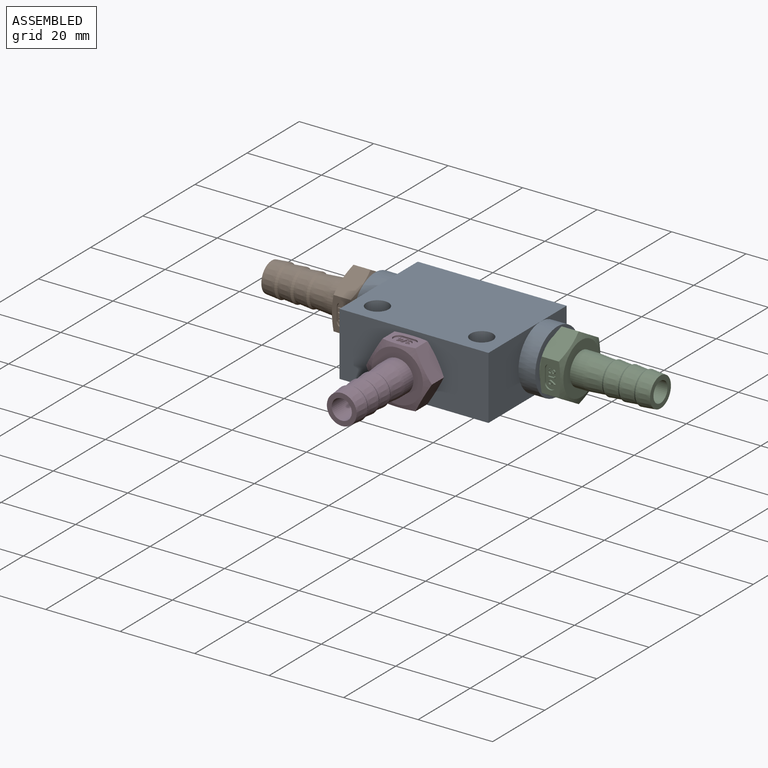
[diagram: assembled view]
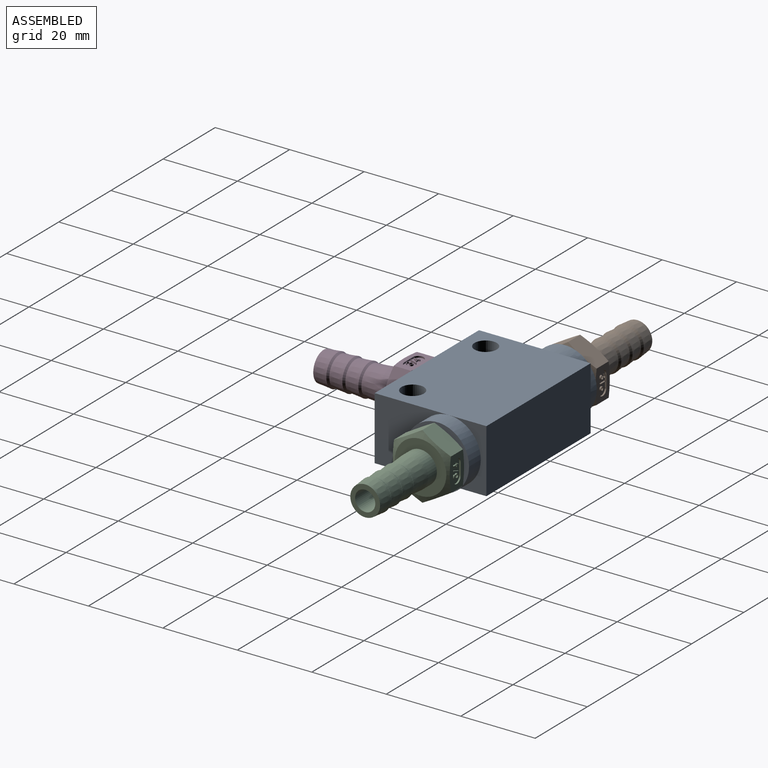
[diagram: assembled view, second angle]
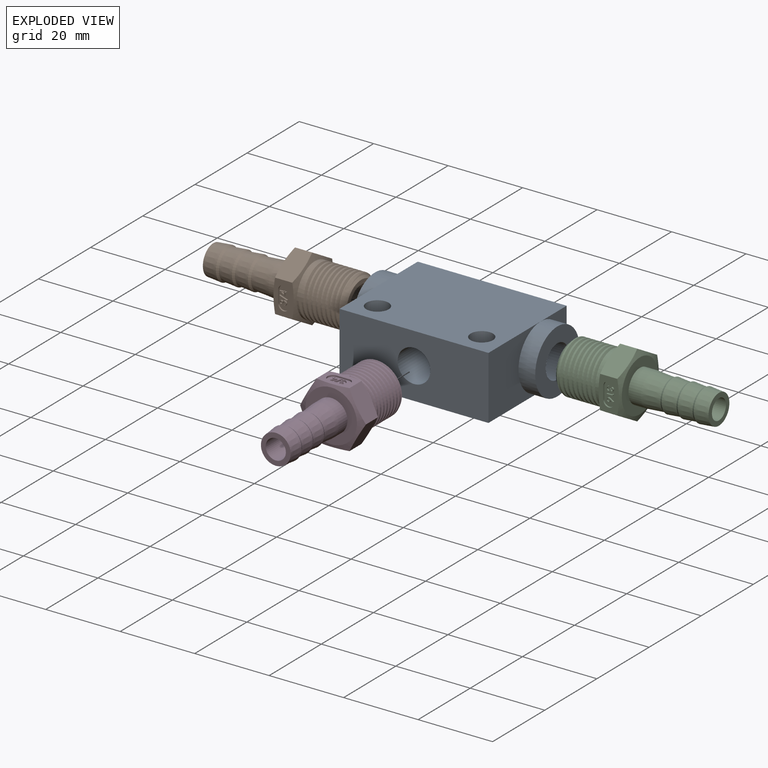
[diagram: exploded view]
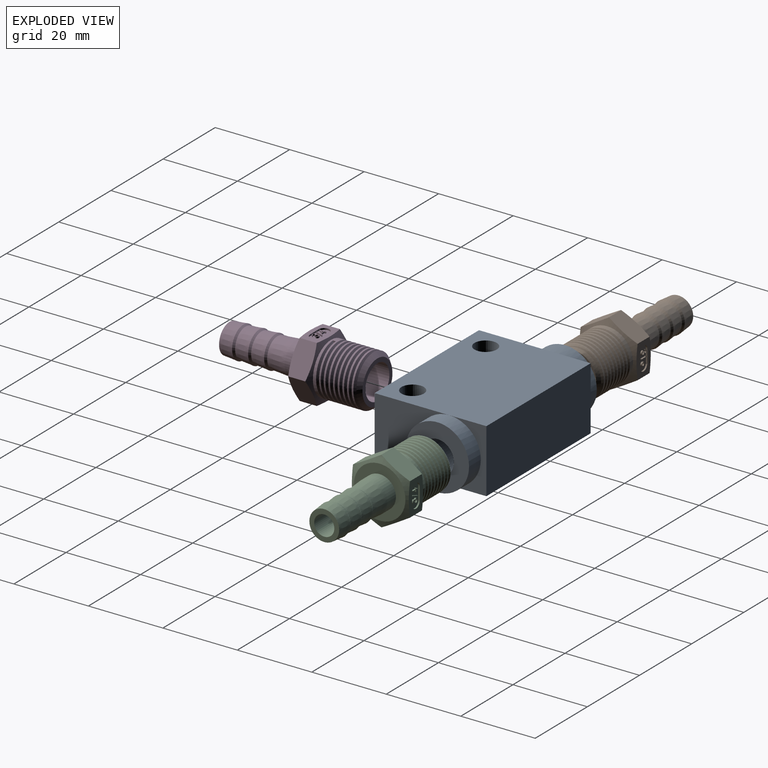
[diagram: exploded view, second angle]
ASSEMBLY  parts=4 mates=3
PART A: 20 faces, bbox 49x30x17 mm
  f0: plane 17x10mm, normal (-1,0,0), area 56.5mm2, adj f5,f6,f7,f15
  f1: plane 20x17mm, normal (-1,0,0), area 226.5mm2, adj f2,f6,f7,f15
  f2: plane 40x17mm, normal (0,-1,0), area 619.2mm2, adj f1,f3,f6,f7,f10
  f3: plane 20x17mm, normal (1,0,0), area 226.5mm2, adj f2,f6,f7,f17
  f4: plane 17x10mm, normal (1,0,0), area 56.5mm2, adj f5,f6,f7,f17
  f5: plane 40x17mm, normal (0,1,0), area 680mm2, adj f0,f4,f6,f7
  f6: plane 40x30mm, normal (0,0,-1), area 1143.5mm2, adj f0,f1,f2,f3,f4,f5,f8,f9
  f7: plane 40x30mm, normal (0,0,1), area 1143.5mm2, adj f0,f1,f2,f3,f4,f5,f8,f9
  f8: cylinder r=3mm len=17mm, axis (0,0,1), area 320.4mm2, adj f6,f7
  f9: cylinder r=3mm len=17mm, axis (0,0,1), area 320.4mm2, adj f6,f7
  f10: cylinder r=4.4mm len=20mm, axis (0,-1,0), area 483.8mm2, adj f2,f19
  f11: cylinder r=4.4mm len=6mm, axis (0,-1,0), area 9.9mm2, adj f13,f19
  f12: cylinder r=4.4mm len=6mm, axis (0,-1,0), area 9.9mm2, adj f14,f19
  f13: plane 6x1.18mm, normal (0,-1,0), area 4.9mm2, adj f11,f19
  f14: plane 6x1.18mm, normal (0,-1,0), area 4.9mm2, adj f12,f19
  f15: cylinder r=8.5mm len=17mm, axis (-1,0,0), area 240.3mm2, adj f0,f1,f16
  f16: plane 17x17mm, normal (-1,0,0), area 166.2mm2, adj f15,f19
  f17: cylinder r=8.5mm len=17mm, axis (1,0,0), area 240.3mm2, adj f3,f4,f18
  f18: plane 17x17mm, normal (1,0,0), area 166.2mm2, adj f17,f19
  f19: cylinder r=4.4mm len=49mm, axis (1,0,0), area 1265.8mm2, adj f10,f11,f12,f13,f14,f16,f18
PART B: 122 faces, bbox 18.3x40.4x18.3 mm
  f0: plane 6.25x2.92mm, normal (0,0,-1), area 14.5mm2, adj f80,f81,f82,f83,f84,f85,f86,f87
  f1: plane 6.25x2.92mm, normal (0,0,1), area 14.3mm2, adj f37,f38,f39,f40,f41,f42,f43,f44
  f2: plane 13.83x13.83mm, normal (0,1,0), area 90.2mm2, adj f24,f36
  f3: plane 11.5x11.5mm, normal (0,-1,0), area 37.9mm2, adj f13,f34
  f4: cylinder r=6.92mm len=0.4mm, axis (0,-1,0), area 0mm2, adj f5,f26,f34
  f5: cylinder r=6.92mm len=13.83mm, axis (0,-1,0), area 17mm2, adj f4,f6,f26,f27,f34
  f6: cylinder r=6.92mm len=13.83mm, axis (0,-1,0), area 20.9mm2, adj f5,f7,f26,f27
  f7: cylinder r=6.92mm len=13.83mm, axis (0,-1,0), area 20.9mm2, adj f6,f8,f26,f27
  f8: cylinder r=6.92mm len=13.83mm, axis (0,-1,0), area 20.9mm2, adj f7,f9,f26,f27
  f9: cylinder r=6.92mm len=13.83mm, axis (0,-1,0), area 20.9mm2, adj f8,f10,f26,f27
  f10: cylinder r=6.92mm len=13.83mm, axis (0,-1,0), area 20.9mm2, adj f9,f11,f26,f27
  f11: cylinder r=6.92mm len=13.83mm, axis (0,-1,0), area 20.9mm2, adj f10,f12,f26,f27
  f12: cylinder r=6.92mm len=13.83mm, axis (0,-1,0), area 72.1mm2, adj f11,f25,f26,f27,f35
  f13: cylinder r=4.58mm len=15mm, axis (0,-1,0), area 432mm2, adj f3,f14
  f14: cone r=2.71mm half-angle=52.9deg, axis (0,-1,0), area 53.8mm2, adj f13,f15
  f15: cylinder r=2.71mm len=23.33mm, axis (0,-1,0), area 397.1mm2, adj f14,f16
  f16: plane 8x8mm, normal (0,1,0), area 27.2mm2, adj f15,f17
  f17: cone r=4.33mm half-angle=5.1deg, axis (0,-1,0), area 98.2mm2, adj f16,f18
  f18: cone r=4mm half-angle=30.3deg, axis (0,1,0), area 17.3mm2, adj f17,f19
  f19: cone r=4.33mm half-angle=5.1deg, axis (0,-1,0), area 98.2mm2, adj f18,f20
  f20: cone r=4mm half-angle=30.3deg, axis (0,1,0), area 17.3mm2, adj f19,f21
  f21: cone r=4.33mm half-angle=5.1deg, axis (0,-1,0), area 98.2mm2, adj f20,f22
  f22: cone r=4mm half-angle=30.3deg, axis (0,1,0), area 17.3mm2, adj f21,f23
  f23: cone r=4.38mm half-angle=4.3deg, axis (0,-1,0), area 131.9mm2, adj f22,f24
  f24: cylinder r=4.38mm len=8.75mm, axis (0,-1,0), area 91.6mm2, adj f2,f23
  f25: plane 0.77x0.67mm, normal (1,0,0), area 0.3mm2, adj f12,f26,f27
  f26: bspline ~13.83x13.83mm, area 268.2mm2, adj f4,f5,f6,f7,f8,f9,f10,f11
  f27: bspline ~13.83x13.83mm, area 278.5mm2, adj f5,f6,f7,f8,f9,f10,f11,f12
  f28: plane 7.65x5.47mm, normal (-0.87,0,-0.5), area 45.7mm2, adj f29,f33,f35,f36
  f29: plane 9.51x6.14mm, normal (0,0,-1), area 29.3mm2, adj f28,f30,f35,f36,f80,f81,f82,f83
  f30: plane 7.65x5.47mm, normal (0.87,0,-0.5), area 45.7mm2, adj f29,f31,f35,f36
  f31: plane 7.65x5.47mm, normal (0.87,0,0.5), area 45.7mm2, adj f30,f32,f35,f36
  f32: plane 8.84x5.47mm, normal (0,0,1), area 29.3mm2, adj f31,f33,f35,f36,f37,f38,f39,f40
  f33: plane 7.65x5.47mm, normal (-0.87,0,0.5), area 45.7mm2, adj f28,f32,f35,f36
  f34: cone r=6.92mm half-angle=45deg, axis (0,1,0), area 53.5mm2, adj f3,f4,f5,f26,f27
  f35: cone r=8.83mm half-angle=70deg, axis (0,1,0), area 55.8mm2, adj f12,f28,f29,f30,f31,f32,f33
  f36: cone r=6.92mm half-angle=70deg, axis (0,-1,0), area 57.7mm2, adj f2,f28,f29,f30,f31,f32,f33
  f37: cylinder r=1.46mm len=2.92mm, axis (0,0,1), area 1.9mm2, adj f1,f32,f38,f40
  f38: plane 3.33x0.42mm, normal (0,-1,0), area 1.4mm2, adj f1,f32,f37,f39
  f39: cylinder r=1.46mm len=2.92mm, axis (0,0,1), area 1.9mm2, adj f1,f32,f38,f40
  f40: plane 3.33x0.42mm, normal (0,1,0), area 1.4mm2, adj f1,f32,f37,f39
  f41: extruded ~0.53x0.45mm, area 0.3mm2, adj f1,f42,f57,f58
  f42: extruded ~0.52x0.46mm, area 0.3mm2, adj f1,f41,f43,f58
  f43: extruded ~0.42x0.36mm, area 0.2mm2, adj f1,f42,f44,f58
  f44: cylinder r=0.48mm len=0.42mm, axis (0,0,-1), area 0.1mm2, adj f1,f43,f45,f58
  f45: cylinder r=0.51mm len=0.42mm, axis (0,0,-1), area 0.1mm2, adj f1,f44,f46,f58
  f46: extruded ~0.61x0.57mm, area 0.4mm2, adj f1,f45,f47,f58
  f47: extruded ~0.59x0.52mm, area 0.4mm2, adj f1,f46,f48,f58
  f48: plane 0.42x0.16mm, normal (0,1,0), area 0.1mm2, adj f1,f47,f49,f58
  f49: extruded ~0.42x0.24mm, area 0.1mm2, adj f1,f48,f50,f58
  f50: extruded ~0.42x0.29mm, area 0.1mm2, adj f1,f49,f51,f58
  f51: extruded ~0.45x0.42mm, area 0.3mm2, adj f1,f50,f52,f58
  f52: extruded ~0.54x0.42mm, area 0.3mm2, adj f1,f51,f53,f58
  f53: plane 0.42x0.18mm, normal (-1,0,0), area 0.1mm2, adj f1,f52,f54,f58
  f54: extruded ~0.45x0.42mm, area 0.2mm2, adj f1,f53,f55,f58
  f55: extruded ~0.42x0.35mm, area 0.2mm2, adj f1,f54,f56,f58
  f56: extruded ~0.42x0.37mm, area 0.2mm2, adj f1,f55,f57,f58
  f57: plane 0.42x0.16mm, normal (0,-1,0), area 0.1mm2, adj f1,f41,f56,f58
  f58: plane 1.85x1.2mm, normal (0,0,1), area 0.7mm2, adj f41,f42,f43,f44,f45,f46,f47,f48
  f59: plane 1.76x0.42mm, normal (1,0,0), area 0.7mm2, adj f1,f60,f64,f65
  f60: plane 0.42x0.16mm, normal (0,-1,0), area 0.1mm2, adj f1,f59,f61,f65
  f61: plane 1.58x0.42mm, normal (-1,0,0), area 0.7mm2, adj f1,f60,f62,f65
  f62: plane 0.42x0.27mm, normal (0,-1,0), area 0.1mm2, adj f1,f61,f63,f65
  f63: plane 0.42x0.18mm, normal (-0.87,0.5,0), area 0.1mm2, adj f1,f62,f64,f65
  f64: plane 0.42x0.33mm, normal (0,1,0), area 0.1mm2, adj f1,f59,f63,f65
  f65: plane 1.76x0.43mm, normal (0,0,1), area 0.3mm2, adj f59,f60,f61,f62,f63,f64
  f66: plane 0.71x0.47mm, normal (0.84,-0.55,0), area 0.4mm2, adj f1,f67,f73,f74
  f67: cylinder r=1.11mm len=0.42mm, axis (0,0,-1), area 0.1mm2, adj f1,f66,f68,f74
  f68: extruded ~0.52x0.52mm, area 0.3mm2, adj f1,f67,f69,f74
  f69: extruded ~0.55x0.54mm, area 0.4mm2, adj f1,f68,f70,f74
  f70: extruded ~0.54x0.53mm, area 0.4mm2, adj f1,f69,f71,f74
  f71: extruded ~0.51x0.42mm, area 0.2mm2, adj f1,f70,f72,f74
  f72: plane 0.81x0.53mm, normal (-0.84,0.55,0), area 0.4mm2, adj f1,f71,f73,f74
  f73: plane 0.42x0.12mm, normal (0.62,0.79,0), area 0.1mm2, adj f1,f66,f72,f74
  f74: plane 1.85x1.09mm, normal (0,0,1), area 0.6mm2, adj f66,f67,f68,f69,f70,f71,f72,f73
  f75: extruded ~0.42x0.38mm, area 0.2mm2, adj f74,f76,f78,f79
  f76: extruded ~0.42x0.38mm, area 0.2mm2, adj f74,f75,f77,f79
  f77: extruded ~0.42x0.4mm, area 0.2mm2, adj f74,f76,f78,f79
  f78: extruded ~0.42x0.37mm, area 0.2mm2, adj f74,f75,f77,f79
  f79: plane 0.77x0.7mm, normal (0,0,1), area 0.4mm2, adj f75,f76,f77,f78
  f80: cylinder r=1.46mm len=2.92mm, axis (0,0,-1), area 1.9mm2, adj f0,f29,f81,f83
  f81: plane 3.33x0.42mm, normal (0,-1,0), area 1.4mm2, adj f0,f29,f80,f82
  f82: cylinder r=1.46mm len=2.92mm, axis (0,0,-1), area 1.9mm2, adj f0,f29,f81,f83
  f83: plane 3.33x0.42mm, normal (0,1,0), area 1.4mm2, adj f0,f29,f80,f82
  f84: plane 1.22x0.42mm, normal (-1,0,0), area 0.5mm2, adj f0,f85,f93,f94
  f85: plane 0.42x0.2mm, normal (0,1,0), area 0.1mm2, adj f0,f84,f86,f94
  f86: plane 0.42x0.18mm, normal (-1,0,0), area 0.1mm2, adj f0,f85,f87,f94
  f87: plane 0.42x0.2mm, normal (0,-1,0), area 0.1mm2, adj f0,f86,f88,f94
  f88: plane 0.42x0.41mm, normal (-1,0,0), area 0.2mm2, adj f0,f87,f89,f94
  f89: plane 0.42x0.16mm, normal (0,-1,0), area 0.1mm2, adj f0,f88,f90,f94
  f90: plane 0.42x0.41mm, normal (1,0,0), area 0.2mm2, adj f0,f89,f91,f94
  f91: plane 0.84x0.42mm, normal (0,-1,0), area 0.3mm2, adj f0,f90,f92,f94
  f92: plane 1.4x0.96mm, normal (0.82,0.57,0), area 0.7mm2, adj f0,f91,f93,f94
  f93: plane 0.42x0.03mm, normal (0,1,0), area 0mm2, adj f0,f84,f92,f94
  f94: plane 1.81x1.2mm, normal (0,0,-1), area 0.6mm2, adj f84,f85,f86,f87,f88,f89,f90,f91
  f95: plane 0.77x0.53mm, normal (-0.82,-0.57,0), area 0.4mm2, adj f94,f96,f97,f98
  f96: plane 0.53x0.42mm, normal (0,1,0), area 0.2mm2, adj f94,f95,f97,f98
  f97: plane 0.77x0.42mm, normal (1,0,0), area 0.3mm2, adj f94,f95,f96,f98
  f98: plane 0.77x0.53mm, normal (0,0,-1), area 0.2mm2, adj f95,f96,f97
  f99: plane 0.42x0.17mm, normal (0,-1,0), area 0.1mm2, adj f0,f100,f102,f103
  f100: plane 2.06x0.74mm, normal (0.94,0.34,0), area 0.9mm2, adj f0,f99,f101,f103
  f101: plane 0.42x0.17mm, normal (0,1,0), area 0.1mm2, adj f0,f100,f102,f103
  f102: plane 2.06x0.74mm, normal (-0.94,-0.34,0), area 0.9mm2, adj f0,f99,f101,f103
  f103: plane 2.06x0.9mm, normal (0,0,-1), area 0.3mm2, adj f99,f100,f101,f102
  f104: extruded ~0.53x0.45mm, area 0.3mm2, adj f0,f105,f120,f121
  f105: extruded ~0.52x0.46mm, area 0.3mm2, adj f0,f104,f106,f121
  f106: extruded ~0.42x0.36mm, area 0.2mm2, adj f0,f105,f107,f121
  f107: cylinder r=0.48mm len=0.42mm, axis (0,0,1), area 0.1mm2, adj f0,f106,f108,f121
  f108: cylinder r=0.51mm len=0.42mm, axis (0,0,1), area 0.1mm2, adj f0,f107,f109,f121
  f109: extruded ~0.61x0.57mm, area 0.4mm2, adj f0,f108,f110,f121
  f110: extruded ~0.59x0.52mm, area 0.4mm2, adj f0,f109,f111,f121
  f111: plane 0.42x0.16mm, normal (0,1,0), area 0.1mm2, adj f0,f110,f112,f121
  f112: extruded ~0.42x0.24mm, area 0.1mm2, adj f0,f111,f113,f121
  f113: extruded ~0.42x0.29mm, area 0.1mm2, adj f0,f112,f114,f121
  f114: extruded ~0.45x0.42mm, area 0.3mm2, adj f0,f113,f115,f121
  f115: extruded ~0.54x0.42mm, area 0.3mm2, adj f0,f114,f116,f121
  f116: plane 0.42x0.18mm, normal (1,0,0), area 0.1mm2, adj f0,f115,f117,f121
  f117: extruded ~0.45x0.42mm, area 0.2mm2, adj f0,f116,f118,f121
  f118: extruded ~0.42x0.35mm, area 0.2mm2, adj f0,f117,f119,f121
  f119: extruded ~0.42x0.37mm, area 0.2mm2, adj f0,f118,f120,f121
  f120: plane 0.42x0.16mm, normal (0,-1,0), area 0.1mm2, adj f0,f104,f119,f121
  f121: plane 1.85x1.2mm, normal (0,0,-1), area 0.7mm2, adj f104,f105,f106,f107,f108,f109,f110,f111
PART C: same geometry as B
PART D: same geometry as B
PLACE A t=(5.37,-27.42,12.87)mm
PLACE B rot(axis=(-0.58,0.58,0.58),120deg) t=(-17.75,11.6,21.37)mm
PLACE C rot(axis=(0.58,0.58,-0.58),120deg) t=(-8.75,11.6,21.37)mm
PLACE D rot(axis=(1,0,0),180deg) t=(-13.25,11.6,21.37)mm
MATE fastened D.f4 <-> A.f10  axis (0,1,0) through (-13.25,11.6,21.37)mm
MATE fastened C.f4 <-> A.f15  axis (-1,0,0) through (-8.75,11.6,21.37)mm
MATE fastened B.f4 <-> A.f15  axis (1,0,0) through (-17.75,11.6,21.37)mm
